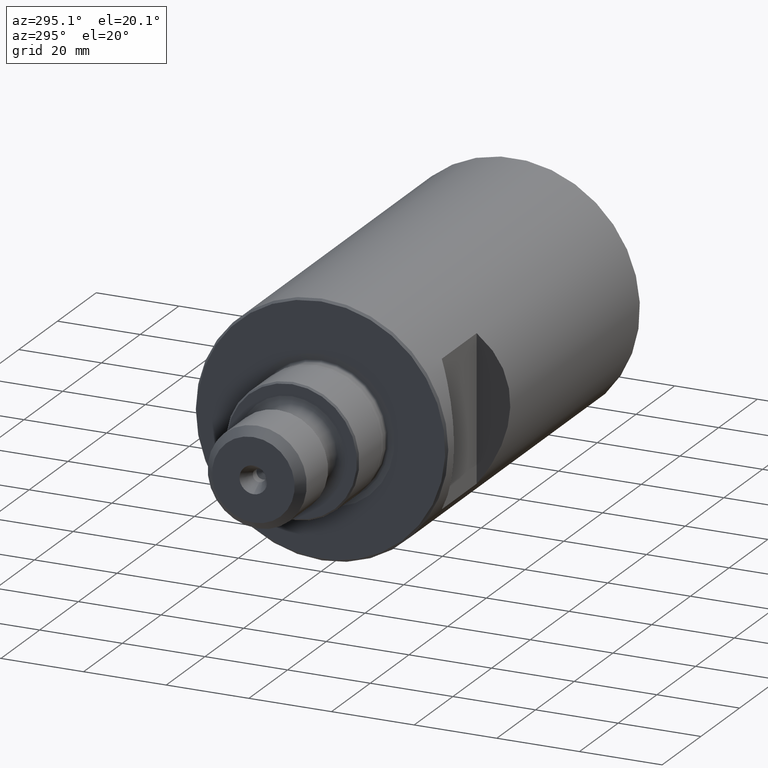
[diagram: clean part render]
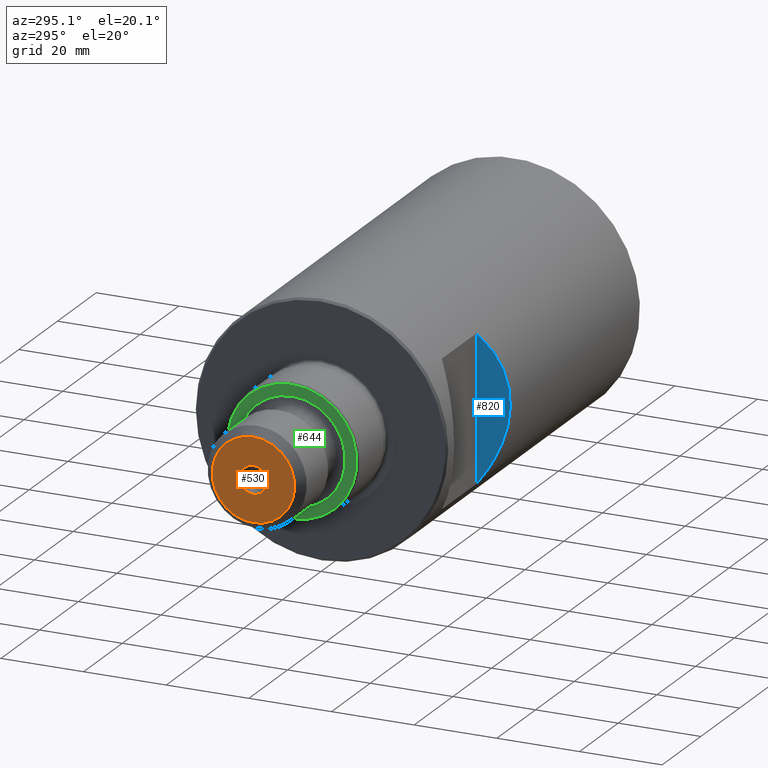
[diagram: same view with three faces highlighted in distinct colors, each labeled with its STEP entity id]
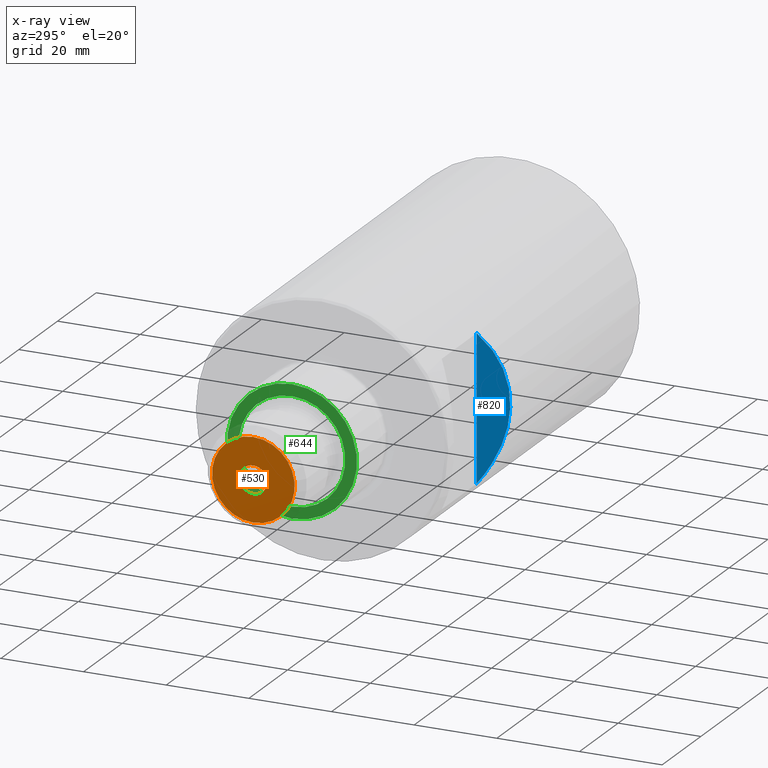
[diagram: x-ray of the same camera — body ghosted, the three highlighted faces saturated]
A machine part, auxiliary view with three faces highlighted in distinct colors.
The next image is the same camera in x-ray (body ghosted, the three faces saturated) — at least one of them is partly hidden behind the body in this view.
Their STEP definitions:

[orange] entity #530 — the highlighted planar face has unit normal (-1, 0, 0).
#3 = CIRCLE ( 'NONE', #184, 3.349999999999983700 ) ;
#49 = AXIS2_PLACEMENT_3D ( 'NONE', #942, #281, #791 ) ;
#63 = VERTEX_POINT ( 'NONE', #185 ) ;
#182 = CARTESIAN_POINT ( 'NONE',  ( -135.0000000000000000, 0.0000000000000000000, -3.349999999999983700 ) ) ;
#184 = AXIS2_PLACEMENT_3D ( 'NONE', #332, #839, #404 ) ;
#185 = CARTESIAN_POINT ( 'NONE',  ( -135.0000000000000000, 0.0000000000000000000, -9.999999999999973400 ) ) ;
#200 = CARTESIAN_POINT ( 'NONE',  ( -135.0000000000000000, 0.0000000000000000000, 0.0000000000000000000 ) ) ;
#254 = ORIENTED_EDGE ( 'NONE', *, *, #852, .T. ) ;
#273 = DIRECTION ( 'NONE',  ( 0.0000000000000000000, 0.0000000000000000000, -1.000000000000000000 ) ) ;
#281 = DIRECTION ( 'NONE',  ( -1.000000000000000000, 0.0000000000000000000, 0.0000000000000000000 ) ) ;
#285 = EDGE_LOOP ( 'NONE', ( #640 ) ) ;
#297 = FACE_OUTER_BOUND ( 'NONE', #285, .T. ) ;
#332 = CARTESIAN_POINT ( 'NONE',  ( -135.0000000000000000, 0.0000000000000000000, 0.0000000000000000000 ) ) ;
#365 = PLANE ( 'NONE',  #49 ) ;
#404 = DIRECTION ( 'NONE',  ( 0.0000000000000000000, 0.0000000000000000000, -1.000000000000000000 ) ) ;
#523 = AXIS2_PLACEMENT_3D ( 'NONE', #200, #707, #273 ) ;
#530 = ADVANCED_FACE ( 'NONE', ( #907, #297 ), #365, .T. ) ;
#546 = CIRCLE ( 'NONE', #523, 9.999999999999973400 ) ;
#640 = ORIENTED_EDGE ( 'NONE', *, *, #754, .F. ) ;
#645 = VERTEX_POINT ( 'NONE', #182 ) ;
#679 = EDGE_LOOP ( 'NONE', ( #254 ) ) ;
#707 = DIRECTION ( 'NONE',  ( 1.000000000000000000, -0.0000000000000000000, -0.0000000000000000000 ) ) ;
#754 = EDGE_CURVE ( 'NONE', #63, #63, #546, .T. ) ;
#791 = DIRECTION ( 'NONE',  ( 0.0000000000000000000, 0.0000000000000000000, 1.000000000000000000 ) ) ;
#839 = DIRECTION ( 'NONE',  ( 1.000000000000000000, -0.0000000000000000000, -0.0000000000000000000 ) ) ;
#852 = EDGE_CURVE ( 'NONE', #645, #645, #3, .T. ) ;
#907 = FACE_BOUND ( 'NONE', #679, .T. ) ;
#942 = CARTESIAN_POINT ( 'NONE',  ( -135.0000000000000000, 9.999999999999973400, 0.0000000000000000000 ) ) ;

[blue] entity #820 — the highlighted planar face has unit normal (-0.7071, -0.7071, 0).
#35 = PLANE ( 'NONE',  #206 ) ;
#80 = CARTESIAN_POINT ( 'NONE',  ( -65.34506517690874700, -32.65493482309124600, -6.659386065305054300 ) ) ;
#86 = CARTESIAN_POINT ( 'NONE',  ( -73.00000000000001400, -24.99999999999998900, -20.00000000000000000 ) ) ;
#100 = DIRECTION ( 'NONE',  ( -0.7071067811865464600, -0.7071067811865486800, 0.0000000000000000000 ) ) ;
#179 = ORIENTED_EDGE ( 'NONE', *, *, #250, .F. ) ;
#189 = FACE_OUTER_BOUND ( 'NONE', #202, .T. ) ;
#202 = EDGE_LOOP ( 'NONE', ( #705, #179 ) ) ;
#206 = AXIS2_PLACEMENT_3D ( 'NONE', #543, #100, #621 ) ;
#207 = EDGE_CURVE ( 'NONE', #784, #540, #797, .T. ) ;
#250 = EDGE_CURVE ( 'NONE', #540, #784, #434, .T. ) ;
#434 =( BOUNDED_CURVE ( )  B_SPLINE_CURVE ( 3, ( #886, #808, #80, #595 ),
 .UNSPECIFIED., .F., .F. ) 
 B_SPLINE_CURVE_WITH_KNOTS ( ( 4, 4 ),
 ( 5.670889395367451500, 6.895481218991721000 ),
 .UNSPECIFIED. ) 
 CURVE ( )  GEOMETRIC_REPRESENTATION_ITEM ( )  RATIONAL_B_SPLINE_CURVE ( ( 1.000000000000000000, 0.8788870703764319900, 0.8788870703764319900, 1.000000000000000000 ) ) 
 REPRESENTATION_ITEM ( '' )  );
#511 = VECTOR ( 'NONE', #675, 1000.000000000000000 ) ;
#540 = VERTEX_POINT ( 'NONE', #721 ) ;
#543 = CARTESIAN_POINT ( 'NONE',  ( -73.00000000000001400, -24.99999999999998900, -20.00000000000000000 ) ) ;
#595 = CARTESIAN_POINT ( 'NONE',  ( -73.00000000000001400, -24.99999999999998900, -17.55854492832478900 ) ) ;
#621 = DIRECTION ( 'NONE',  ( 0.7071067811865486800, -0.7071067811865464600, 0.0000000000000000000 ) ) ;
#639 = CARTESIAN_POINT ( 'NONE',  ( -73.00000000000001400, -24.99999999999998900, -17.55854492832478900 ) ) ;
#675 = DIRECTION ( 'NONE',  ( -0.0000000000000000000, -0.0000000000000000000, 1.000000000000000000 ) ) ;
#705 = ORIENTED_EDGE ( 'NONE', *, *, #207, .F. ) ;
#721 = CARTESIAN_POINT ( 'NONE',  ( -73.00000000000001400, -24.99999999999998900, 17.55854492832479300 ) ) ;
#784 = VERTEX_POINT ( 'NONE', #639 ) ;
#797 = LINE ( 'NONE', #86, #511 ) ;
#808 = CARTESIAN_POINT ( 'NONE',  ( -65.34506517690874700, -32.65493482309123900, 6.659386065305063200 ) ) ;
#820 = ADVANCED_FACE ( 'NONE', ( #189 ), #35, .T. ) ;
#886 = CARTESIAN_POINT ( 'NONE',  ( -73.00000000000001400, -24.99999999999998900, 17.55854492832479300 ) ) ;

[green] entity #644 — the highlighted planar face has unit normal (-1, 0, 0).
#33 = FACE_OUTER_BOUND ( 'NONE', #379, .T. ) ;
#48 = DIRECTION ( 'NONE',  ( 0.0000000000000000000, 0.0000000000000000000, 1.000000000000000000 ) ) ;
#226 = AXIS2_PLACEMENT_3D ( 'NONE', #340, #773, #48 ) ;
#242 = EDGE_CURVE ( 'NONE', #601, #601, #636, .T. ) ;
#293 = CARTESIAN_POINT ( 'NONE',  ( -115.0000000000000000, 0.0000000000000000000, 0.0000000000000000000 ) ) ;
#301 = DIRECTION ( 'NONE',  ( 0.0000000000000000000, 0.0000000000000000000, -1.000000000000000000 ) ) ;
#321 = DIRECTION ( 'NONE',  ( -1.000000000000000000, 0.0000000000000000000, 0.0000000000000000000 ) ) ;
#324 = FACE_BOUND ( 'NONE', #608, .T. ) ;
#340 = CARTESIAN_POINT ( 'NONE',  ( -115.0000000000000000, 16.19999999999998200, 0.0000000000000000000 ) ) ;
#354 = ORIENTED_EDGE ( 'NONE', *, *, #394, .T. ) ;
#379 = EDGE_LOOP ( 'NONE', ( #354 ) ) ;
#394 = EDGE_CURVE ( 'NONE', #865, #865, #700, .T. ) ;
#483 = PLANE ( 'NONE',  #226 ) ;
#559 = ORIENTED_EDGE ( 'NONE', *, *, #242, .T. ) ;
#576 = CARTESIAN_POINT ( 'NONE',  ( -115.0000000000000000, 0.0000000000000000000, 15.69999999999998900 ) ) ;
#601 = VERTEX_POINT ( 'NONE', #866 ) ;
#608 = EDGE_LOOP ( 'NONE', ( #559 ) ) ;
#636 = CIRCLE ( 'NONE', #730, 12.89999999999998800 ) ;
#644 = ADVANCED_FACE ( 'NONE', ( #33, #324 ), #483, .T. ) ;
#700 = CIRCLE ( 'NONE', #843, 15.69999999999998900 ) ;
#730 = AXIS2_PLACEMENT_3D ( 'NONE', #293, #733, #301 ) ;
#733 = DIRECTION ( 'NONE',  ( 1.000000000000000000, -0.0000000000000000000, -0.0000000000000000000 ) ) ;
#753 = CARTESIAN_POINT ( 'NONE',  ( -115.0000000000000000, 0.0000000000000000000, 0.0000000000000000000 ) ) ;
#773 = DIRECTION ( 'NONE',  ( -1.000000000000000000, 0.0000000000000000000, 0.0000000000000000000 ) ) ;
#828 = DIRECTION ( 'NONE',  ( 0.0000000000000000000, 0.0000000000000000000, 1.000000000000000000 ) ) ;
#843 = AXIS2_PLACEMENT_3D ( 'NONE', #753, #321, #828 ) ;
#865 = VERTEX_POINT ( 'NONE', #576 ) ;
#866 = CARTESIAN_POINT ( 'NONE',  ( -115.0000000000000000, 0.0000000000000000000, -12.89999999999998800 ) ) ;